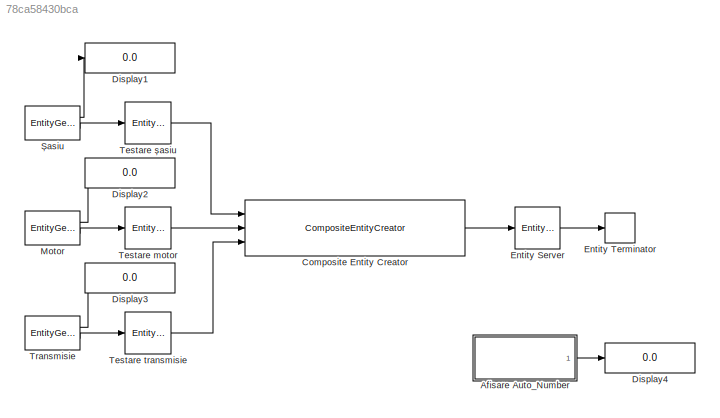
MODEL slx_78ca58430bca
KIND model
CONFIG AbsTol = auto
CONFIG FixedStep = auto
CONFIG MaxStep = auto
CONFIG MinStep = auto
CONFIG RelTol = 1e-3
CONFIG SampleTimeConstraint = Unconstrained
CONFIG Solver = VariableStepDiscrete
CONFIG SolverMode = Auto
CONFIG SolverName = VariableStepDiscrete
CONFIG StartTime = 0.0
CONFIG StopTime = 240
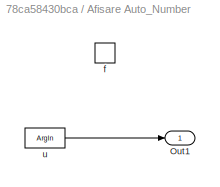
BLOCK [SubSystem] Afisare Auto_Number
  Ports = [0, 1, 0, 1]
  RequestExecContextInheritance = off
  TreatAsAtomicUnit = on
  Variant = off
BLOCK [Outport] Afisare Auto_Number/Out1
  IconDisplay = Port number
BLOCK [TriggerPort] Afisare Auto_Number/f
  FunctionName = f
  IsSimulinkFunction = on
  Ports = []
  StatesWhenEnabling = held
  TriggerType = function-call
  VariantControl = Variant
BLOCK [ArgIn] Afisare Auto_Number/u
  ArgumentName = u
  DisableCoverage = on
BLOCK [CompositeEntityCreator] Composite Entity Creator
  EntityTypeName = Combined
  InputEntityName = Sasiu|Motor|Transmisie
  InputPortMap = u0,u1,u2
  InputPortMessageModes = m,m,m
  NumberInputPorts = 3
  OutputPortMap = o0
  OutputPortMessageModes = m
  Ports = [3, 1]
BLOCK [Display] Display1
  Decimation = 1
  Ports = [1]
BLOCK [Display] Display2
  Decimation = 1
  Ports = [1]
BLOCK [Display] Display3
  Decimation = 1
  Ports = [1]
BLOCK [Display] Display4
  Decimation = 1
  Ports = [1]
BLOCK [EntityServer] Entity Server
  Capacity = 1
  InputPortMap = u2
  InputPortMessageModes = m
  OutputPortMap = o9
  OutputPortMessageModes = m
  Ports = [1, 1]
  ServiceCompleteAction = entity.Sasiu.Auto_Number = ...\n    entity.Motor.Motor_Nbr + ...\n    (entity.Transmisie.Transmisie_Nbr) * 10 + ...\n    (entity.Sasiu.Sasiu_Nbr) + 100;\nf(entity.Sasiu.Auto_Number);
  ServiceTimeValue = 0.3
BLOCK [EntityTerminator] Entity Terminator
  InputPortMap = u0
  InputPortMessageModes = m
  Ports = [1]
BLOCK [EntityGenerator] Motor
  AttributeName = Motor_Nbr
  EntityType = Structured
  EntityTypeName = Motor
  GenerateAction = persistent Motor_count\nif (isempty(Motor_count))\n    Motor_count = 0;\nend\nMotor_count = Motor_count + 1;\nentity.Motor_Nbr = Motor_count;
  NumberEntitiesDeparted = on
  OutputPortMap = o0,o3
  OutputPortMessageModes = n,m
  Period = 0.8
  Ports = [0, 2]
BLOCK [EntityServer] Testare motor
  Capacity = 1
  InputPortMap = u2
  InputPortMessageModes = m
  OutputPortMap = o9
  OutputPortMessageModes = m
  Ports = [1, 1]
  ServiceTimeValue = 0.6
BLOCK [EntityServer] Testare transmisie
  Capacity = 1
  InputPortMap = u2
  InputPortMessageModes = m
  OutputPortMap = o9
  OutputPortMessageModes = m
  Ports = [1, 1]
  ServiceTimeValue = 0.4
BLOCK [EntityServer] Testare șasiu
  Capacity = 1
  InputPortMap = u2
  InputPortMessageModes = m
  OutputPortMap = o9
  OutputPortMessageModes = m
  Ports = [1, 1]
  ServiceTimeValue = 0.4
BLOCK [EntityGenerator] Transmisie
  AttributeName = Transmisie_Nbr
  EntityType = Structured
  EntityTypeName = Transmisie
  GenerateAction = persistent Transmisie_count\nif (isempty(Transmisie_count))\n    Transmisie_count = 0;\nend\nTransmisie_count = Transmisie_count + 1;\nentity.Transmisie_Nbr = Transmisie_count;
  NumberEntitiesDeparted = on
  OutputPortMap = o0,o3
  OutputPortMessageModes = n,m
  Period = 0.6
  Ports = [0, 2]
BLOCK [EntityGenerator] Șasiu
  AttributeInitialValue = 1|0
  AttributeName = Sasiu_Nbr|Auto_Number
  EntityType = Structured
  EntityTypeName = Sasiu
  GenerateAction = persistent Sasiu_count\nif (isempty(Sasiu_count))\n    Sasiu_count = 0;\nend\nSasiu_count = Sasiu_count + 1;\nentity.Sasiu_Nbr = Sasiu_count;
  NumberEntitiesDeparted = on
  OutputPortMap = o0,o3
  OutputPortMessageModes = n,m
  Period = 0.4
  Ports = [0, 2]
LINE Afisare Auto_Number/u:1 -> Afisare Auto_Number/Out1:1
LINE Afisare Auto_Number:1 -> Display4:1
LINE Composite Entity Creator:1 -> Entity Server:1
LINE Entity Server:1 -> Entity Terminator:1
LINE Motor:1 -> Display2:1
LINE Motor:2 -> Testare motor:1
LINE Testare motor:1 -> Composite Entity Creator:2
LINE Testare transmisie:1 -> Composite Entity Creator:3
LINE Testare șasiu:1 -> Composite Entity Creator:1
LINE Transmisie:1 -> Display3:1
LINE Transmisie:2 -> Testare transmisie:1
LINE Șasiu:1 -> Display1:1
LINE Șasiu:2 -> Testare șasiu:1
